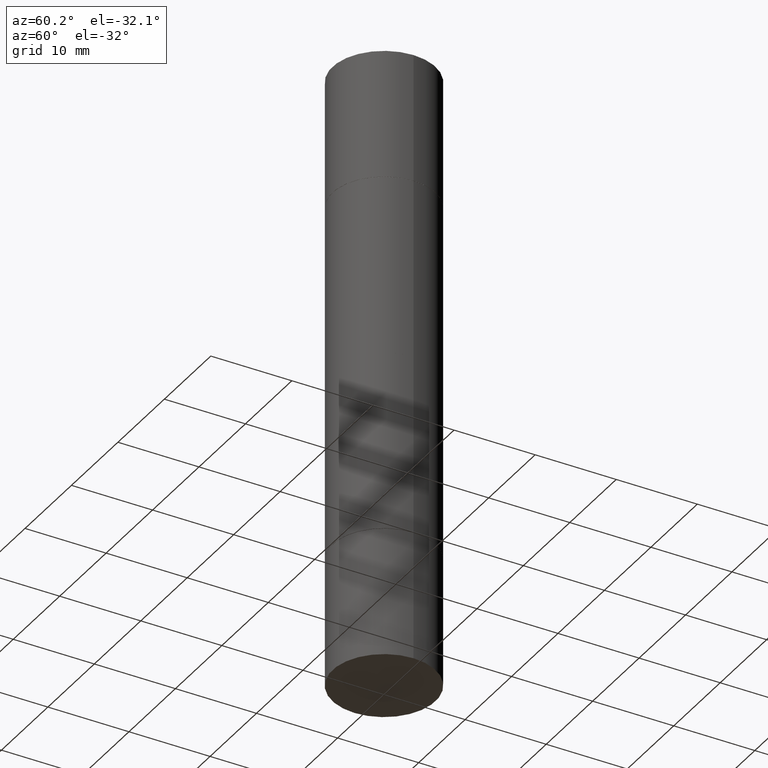
[diagram: clean part render]
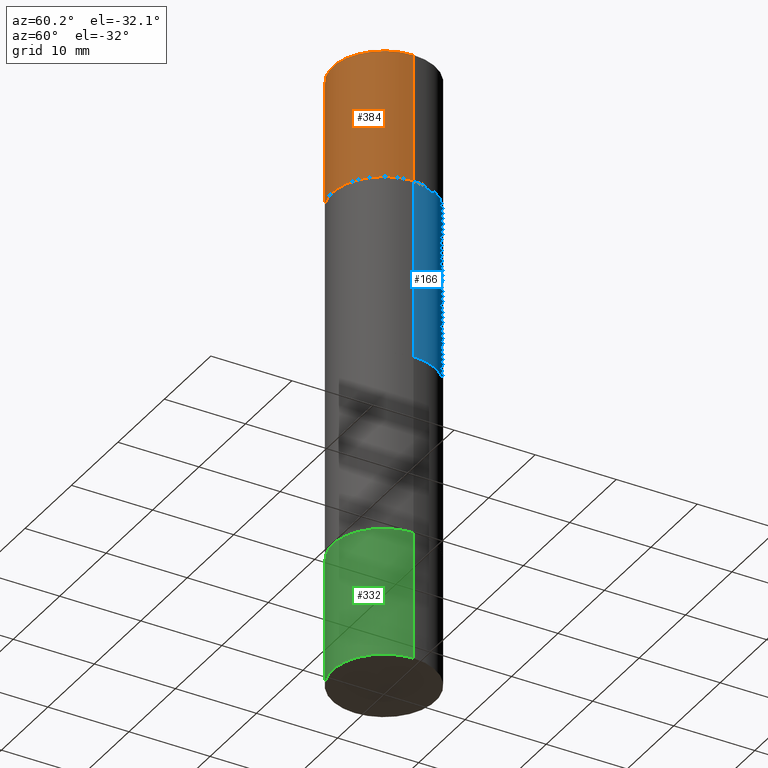
[diagram: same view with three faces highlighted in distinct colors, each labeled with its STEP entity id]
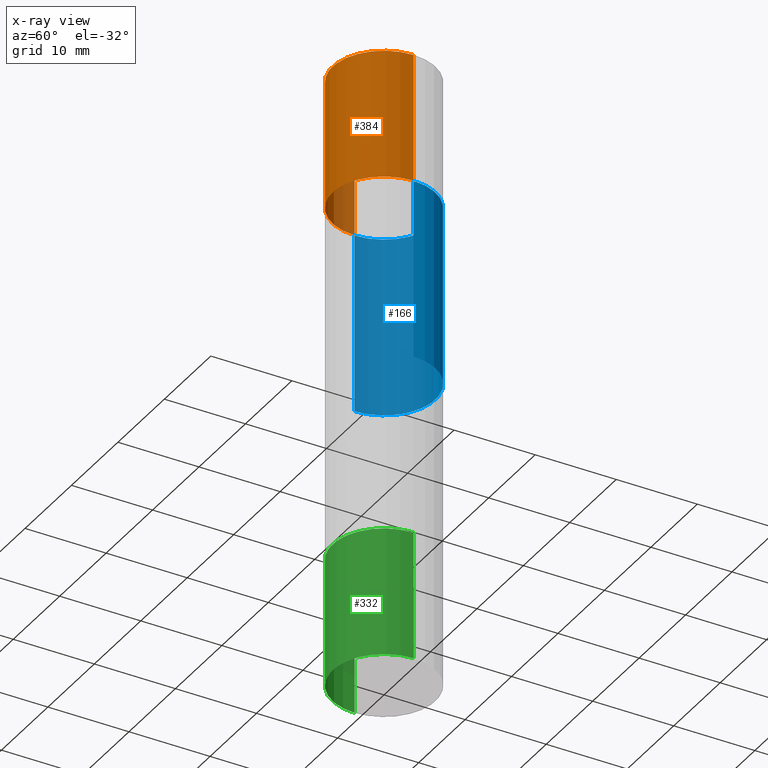
[diagram: x-ray of the same camera — body ghosted, the three highlighted faces saturated]
A machine part, auxiliary view with three faces highlighted in distinct colors.
The next image is the same camera in x-ray (body ghosted, the three faces saturated) — at least one of them is partly hidden behind the body in this view.
Their STEP definitions:

[orange] entity #384 — the highlighted cylindrical surface (partial cylindrical patch) has radius 6.35 mm, axis along (-0, -0, -1).
#40 = ORIENTED_EDGE ( 'NONE', *, *, #644, .T. ) ;
#71 = DIRECTION ( 'NONE',  ( 1.000000000000000000, -6.982962677686270655E-15, 0.000000000000000000 ) ) ;
#76 = EDGE_CURVE ( 'NONE', #244, #666, #214, .T. ) ;
#96 = DIRECTION ( 'NONE',  ( 1.000000000000000000, -6.982962677686266711E-15, 0.000000000000000000 ) ) ;
#164 = CIRCLE ( 'NONE', #228, 0.2500000000000000000 ) ;
#168 = DIRECTION ( 'NONE',  ( 2.445468806185136597E-29, 3.492890411551752677E-15, 1.000000000000000000 ) ) ;
#169 = CARTESIAN_POINT ( 'NONE',  ( 0.2500000000000000000, -1.743627060358652092E-15, 1.092739197465705287E-15 ) ) ;
#178 = CARTESIAN_POINT ( 'NONE',  ( -0.2500000000000000000, 6.257098548958748880E-16, 1.092739197465709232E-15 ) ) ;
#200 = CARTESIAN_POINT ( 'NONE',  ( -0.2500000000000000000, -8.761433126149462132E-15, -2.999999999999999112 ) ) ;
#214 = CIRCLE ( 'NONE', #434, 0.2500000000000000000 ) ;
#216 = LINE ( 'NONE', #200, #467 ) ;
#228 = AXIS2_PLACEMENT_3D ( 'NONE', #371, #676, #316 ) ;
#244 = VERTEX_POINT ( 'NONE', #178 ) ;
#263 = EDGE_CURVE ( 'NONE', #666, #458, #489, .T. ) ;
#316 = DIRECTION ( 'NONE',  ( 1.000000000000000000, -6.982962677686266711E-15, 0.000000000000000000 ) ) ;
#336 = VECTOR ( 'NONE', #645, 39.37007874015748143 ) ;
#346 = FACE_OUTER_BOUND ( 'NONE', #450, .T. ) ;
#355 = CARTESIAN_POINT ( 'NONE',  ( 0.000000000000000000, -1.047655762559234344E-14, -2.999999999999999112 ) ) ;
#371 = CARTESIAN_POINT ( 'NONE',  ( 5.807988414689700538E-29, -2.180942898156930788E-15, -0.6249999999999988898 ) ) ;
#384 = ADVANCED_FACE ( 'NONE', ( #346 ), #455, .T. ) ;
#395 = VERTEX_POINT ( 'NONE', #558 ) ;
#422 = DIRECTION ( 'NONE',  ( -2.445468806185136877E-29, -3.492890411551753071E-15, -1.000000000000000000 ) ) ;
#434 = AXIS2_PLACEMENT_3D ( 'NONE', #525, #168, #96 ) ;
#439 = CARTESIAN_POINT ( 'NONE',  ( 0.2500000000000000000, -1.222229829501391170E-14, -2.999999999999999112 ) ) ;
#450 = EDGE_LOOP ( 'NONE', ( #457, #501, #40, #614 ) ) ;
#455 = CYLINDRICAL_SURFACE ( 'NONE', #486, 0.2500000000000000000 ) ;
#457 = ORIENTED_EDGE ( 'NONE', *, *, #76, .F. ) ;
#458 = VERTEX_POINT ( 'NONE', #506 ) ;
#467 = VECTOR ( 'NONE', #422, 39.37007874015748143 ) ;
#486 = AXIS2_PLACEMENT_3D ( 'NONE', #355, #551, #71 ) ;
#489 = LINE ( 'NONE', #439, #336 ) ;
#501 = ORIENTED_EDGE ( 'NONE', *, *, #589, .T. ) ;
#506 = CARTESIAN_POINT ( 'NONE',  ( 0.2500000000000000000, -3.926683567578497071E-15, -0.6249999999999988898 ) ) ;
#525 = CARTESIAN_POINT ( 'NONE',  ( 7.336406418555409790E-29, 2.113609062914567177E-18, 1.092739197465705287E-15 ) ) ;
#551 = DIRECTION ( 'NONE',  ( -2.445468806185136597E-29, -3.492890411551752677E-15, -1.000000000000000000 ) ) ;
#558 = CARTESIAN_POINT ( 'NONE',  ( -0.2500000000000000000, 6.257098548958748880E-16, -0.6249999999999988898 ) ) ;
#589 = EDGE_CURVE ( 'NONE', #244, #395, #216, .T. ) ;
#614 = ORIENTED_EDGE ( 'NONE', *, *, #263, .F. ) ;
#644 = EDGE_CURVE ( 'NONE', #395, #458, #164, .T. ) ;
#645 = DIRECTION ( 'NONE',  ( -2.445468806185136877E-29, -3.492890411551753071E-15, -1.000000000000000000 ) ) ;
#666 = VERTEX_POINT ( 'NONE', #169 ) ;
#676 = DIRECTION ( 'NONE',  ( 2.445468806185136597E-29, 3.492890411551752677E-15, 1.000000000000000000 ) ) ;

[blue] entity #166 — the highlighted cylindrical surface (partial cylindrical patch) has radius 6.35 mm, axis along (-0, -0, -1).
#8 = EDGE_CURVE ( 'NONE', #83, #460, #102, .T. ) ;
#9 = EDGE_CURVE ( 'NONE', #83, #144, #500, .T. ) ;
#11 = DIRECTION ( 'NONE',  ( -2.445468806185136597E-29, -3.492890411551752677E-15, -1.000000000000000000 ) ) ;
#39 = DIRECTION ( 'NONE',  ( 0.000000000000000000, 1.000000000000000000, -3.278217592397118229E-15 ) ) ;
#42 = CARTESIAN_POINT ( 'NONE',  ( 0.2500000000000000000, -3.930176457990049608E-15, -0.6259999999999990017 ) ) ;
#75 = VECTOR ( 'NONE', #261, 39.37007874015748143 ) ;
#83 = VERTEX_POINT ( 'NONE', #42 ) ;
#87 = VERTEX_POINT ( 'NONE', #318 ) ;
#102 = CIRCLE ( 'NONE', #345, 0.2500000000000000000 ) ;
#107 = DIRECTION ( 'NONE',  ( -2.445468806185136877E-29, -3.492890411551753071E-15, -1.000000000000000000 ) ) ;
#116 = ORIENTED_EDGE ( 'NONE', *, *, #567, .F. ) ;
#128 = ORIENTED_EDGE ( 'NONE', *, *, #9, .T. ) ;
#140 = CARTESIAN_POINT ( 'NONE',  ( -0.2500000000000000000, -4.693112891255996450E-16, -0.6259999999999990017 ) ) ;
#144 = VERTEX_POINT ( 'NONE', #340 ) ;
#150 = ORIENTED_EDGE ( 'NONE', *, *, #8, .F. ) ;
#166 = ADVANCED_FACE ( 'NONE', ( #223 ), #387, .T. ) ;
#170 = CARTESIAN_POINT ( 'NONE',  ( 0.000000000000000000, -1.047655762559234344E-14, -2.999999999999999112 ) ) ;
#192 = CARTESIAN_POINT ( 'NONE',  ( 0.2499999999999998335, -1.222229829501391012E-14, -2.999999999999999112 ) ) ;
#195 = EDGE_LOOP ( 'NONE', ( #116, #150, #128, #339 ) ) ;
#223 = FACE_OUTER_BOUND ( 'NONE', #195, .T. ) ;
#249 = CIRCLE ( 'NONE', #629, 0.2499999999999998335 ) ;
#261 = DIRECTION ( 'NONE',  ( -2.445468806185136877E-29, -3.492890411551753071E-15, -1.000000000000000000 ) ) ;
#318 = CARTESIAN_POINT ( 'NONE',  ( -0.2499999999999998335, -1.995704398973716874E-15, -1.499999999999999556 ) ) ;
#339 = ORIENTED_EDGE ( 'NONE', *, *, #620, .F. ) ;
#340 = CARTESIAN_POINT ( 'NONE',  ( 0.2499999999999998335, -5.456569567838164864E-15, -1.499999999999999556 ) ) ;
#345 = AXIS2_PLACEMENT_3D ( 'NONE', #451, #654, #607 ) ;
#357 = AXIS2_PLACEMENT_3D ( 'NONE', #170, #11, #482 ) ;
#387 = CYLINDRICAL_SURFACE ( 'NONE', #357, 0.2499999999999998335 ) ;
#420 = CARTESIAN_POINT ( 'NONE',  ( -0.2499999999999998335, -8.761433126149462132E-15, -2.999999999999999112 ) ) ;
#425 = CARTESIAN_POINT ( 'NONE',  ( 3.668203209277703774E-29, -5.237222008264716599E-15, -1.499999999999999556 ) ) ;
#451 = CARTESIAN_POINT ( 'NONE',  ( 5.805542945883514935E-29, -2.184435788568482141E-15, -0.6259999999999990017 ) ) ;
#460 = VERTEX_POINT ( 'NONE', #140 ) ;
#465 = VECTOR ( 'NONE', #107, 39.37007874015748143 ) ;
#475 = LINE ( 'NONE', #420, #75 ) ;
#482 = DIRECTION ( 'NONE',  ( 1.000000000000000000, -6.982962677686267499E-15, 0.000000000000000000 ) ) ;
#500 = LINE ( 'NONE', #192, #465 ) ;
#567 = EDGE_CURVE ( 'NONE', #460, #87, #475, .T. ) ;
#607 = DIRECTION ( 'NONE',  ( 1.000000000000000000, -6.982962677686266711E-15, 0.000000000000000000 ) ) ;
#620 = EDGE_CURVE ( 'NONE', #87, #144, #249, .T. ) ;
#629 = AXIS2_PLACEMENT_3D ( 'NONE', #425, #632, #39 ) ;
#632 = DIRECTION ( 'NONE',  ( -0.000000000000000000, -3.492185875197449130E-15, -1.000000000000000000 ) ) ;
#654 = DIRECTION ( 'NONE',  ( 2.445468806185136597E-29, 3.492890411551752677E-15, 1.000000000000000000 ) ) ;

[green] entity #332 — the highlighted cylindrical surface (partial cylindrical patch) has radius 6.35 mm, axis along (-0, 0, 1).
#27 = ORIENTED_EDGE ( 'NONE', *, *, #49, .T. ) ;
#44 = ORIENTED_EDGE ( 'NONE', *, *, #207, .F. ) ;
#49 = EDGE_CURVE ( 'NONE', #656, #619, #154, .T. ) ;
#55 = CIRCLE ( 'NONE', #193, 0.2500000000000000000 ) ;
#112 = ORIENTED_EDGE ( 'NONE', *, *, #376, .T. ) ;
#114 = AXIS2_PLACEMENT_3D ( 'NONE', #605, #145, #135 ) ;
#120 = DIRECTION ( 'NONE',  ( -2.445468806185136597E-29, 3.491481338843145583E-15, 1.000000000000000000 ) ) ;
#131 = DIRECTION ( 'NONE',  ( 1.000000000000000000, -6.982962677686266711E-15, 4.876176775795935793E-29 ) ) ;
#135 = DIRECTION ( 'NONE',  ( 1.000000000000000000, -6.982962677686262766E-15, 0.000000000000000000 ) ) ;
#145 = DIRECTION ( 'NONE',  ( -2.445468806185136597E-29, 3.491481338843145583E-15, 1.000000000000000000 ) ) ;
#154 = LINE ( 'NONE', #466, #301 ) ;
#182 = CIRCLE ( 'NONE', #114, 0.2500000000000000000 ) ;
#189 = LINE ( 'NONE', #398, #369 ) ;
#191 = CARTESIAN_POINT ( 'NONE',  ( 0.000000000000000000, 0.000000000000000000, 0.000000000000000000 ) ) ;
#193 = AXIS2_PLACEMENT_3D ( 'NONE', #590, #120, #641 ) ;
#207 = EDGE_CURVE ( 'NONE', #498, #619, #55, .T. ) ;
#245 = DIRECTION ( 'NONE',  ( -2.445468806185136877E-29, 3.491481338843145188E-15, 1.000000000000000000 ) ) ;
#255 = CARTESIAN_POINT ( 'NONE',  ( -0.2500000000000000000, -7.606999258740704349E-15, -3.000000000000000444 ) ) ;
#266 = CARTESIAN_POINT ( 'NONE',  ( 0.2500000000000000000, -1.222018468595100303E-14, -3.000000000000000444 ) ) ;
#267 = DIRECTION ( 'NONE',  ( -2.445468806185136877E-29, 3.491481338843145188E-15, 1.000000000000000000 ) ) ;
#286 = FACE_OUTER_BOUND ( 'NONE', #343, .T. ) ;
#301 = VECTOR ( 'NONE', #267, 39.37007874015748143 ) ;
#332 = ADVANCED_FACE ( 'NONE', ( #286 ), #495, .T. ) ;
#343 = EDGE_LOOP ( 'NONE', ( #348, #112, #27, #44 ) ) ;
#348 = ORIENTED_EDGE ( 'NONE', *, *, #356, .F. ) ;
#356 = EDGE_CURVE ( 'NONE', #542, #498, #189, .T. ) ;
#369 = VECTOR ( 'NONE', #245, 39.37007874015748143 ) ;
#376 = EDGE_CURVE ( 'NONE', #542, #656, #182, .T. ) ;
#398 = CARTESIAN_POINT ( 'NONE',  ( -0.2500000000000000000, 1.776356839400250465E-15, -1.229733772563726445E-29 ) ) ;
#415 = AXIS2_PLACEMENT_3D ( 'NONE', #191, #503, #131 ) ;
#466 = CARTESIAN_POINT ( 'NONE',  ( 0.2500000000000000000, -1.745740669421566678E-15, 1.219044193948983948E-29 ) ) ;
#495 = CYLINDRICAL_SURFACE ( 'NONE', #415, 0.2500000000000000000 ) ;
#498 = VERTEX_POINT ( 'NONE', #564 ) ;
#503 = DIRECTION ( 'NONE',  ( -2.445468806185136597E-29, 3.491481338843145583E-15, 1.000000000000000000 ) ) ;
#511 = CARTESIAN_POINT ( 'NONE',  ( 0.2500000000000000000, -1.003800884917403837E-14, -2.375000000000000000 ) ) ;
#542 = VERTEX_POINT ( 'NONE', #255 ) ;
#564 = CARTESIAN_POINT ( 'NONE',  ( -0.2500000000000000000, -7.606999258740704349E-15, -2.375000000000000000 ) ) ;
#590 = CARTESIAN_POINT ( 'NONE',  ( 5.807988414689700538E-29, -8.292268179752471696E-15, -2.375000000000000000 ) ) ;
#605 = CARTESIAN_POINT ( 'NONE',  ( 7.336406418555409790E-29, -1.047444401652943635E-14, -3.000000000000000444 ) ) ;
#619 = VERTEX_POINT ( 'NONE', #511 ) ;
#641 = DIRECTION ( 'NONE',  ( 1.000000000000000000, -6.982962677686266711E-15, 0.000000000000000000 ) ) ;
#656 = VERTEX_POINT ( 'NONE', #266 ) ;